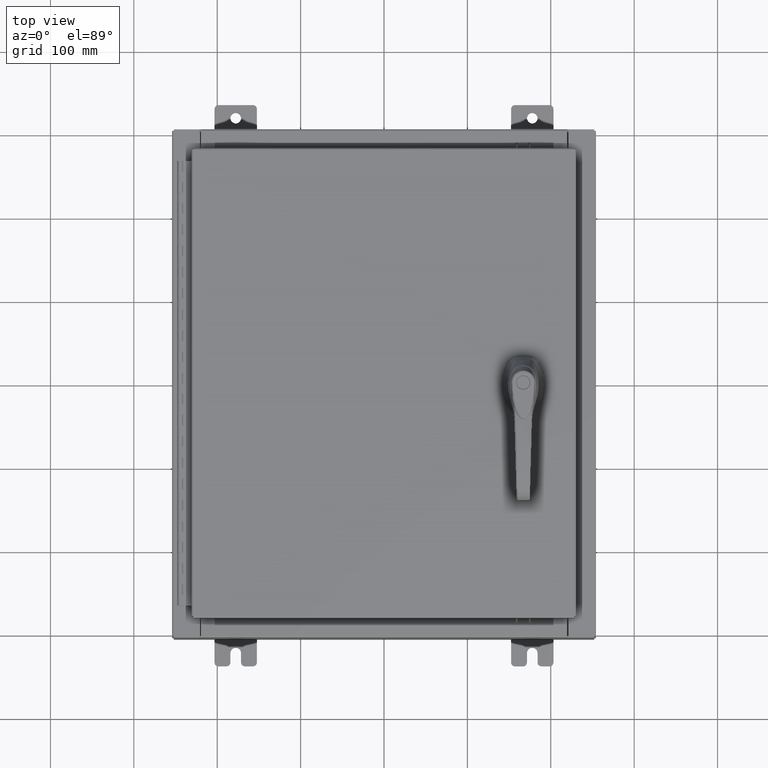
[diagram: clean part render]
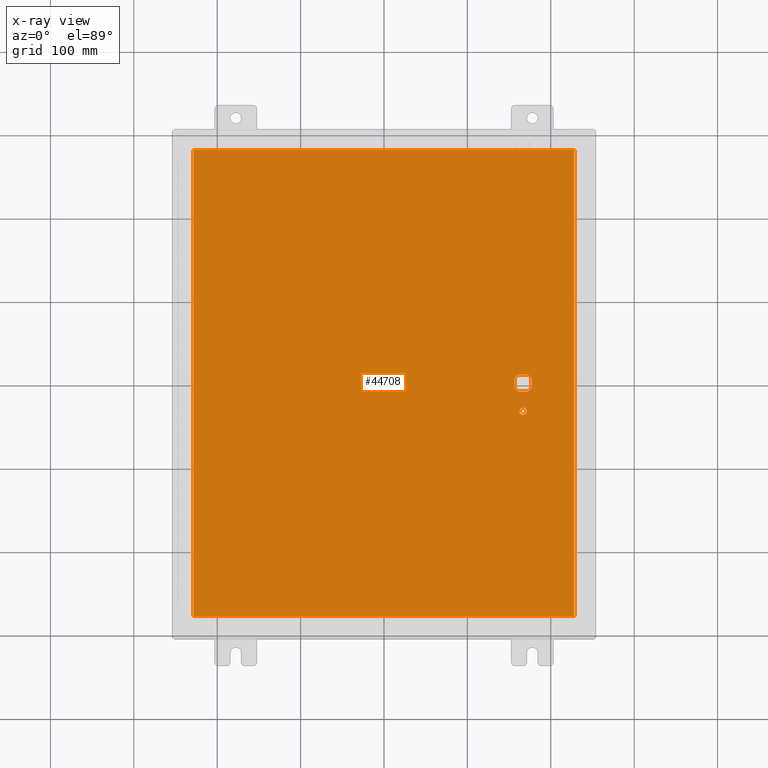
[diagram: x-ray — body ghosted, one internal face saturated and labeled with its STEP entity id]
A machine part, top view, then the same camera in x-ray: the body is ghosted and one INTERNAL B-rep face — a face not visible from any outside direction — is saturated and labeled: STEP entity #44708.
In plain terms, the highlighted planar face has unit normal (0, 0, -1).
Its self-contained STEP definition (entity closure, byte-faithful):
#4 = CARTESIAN_POINT ( 'NONE',  ( 6.577999999999998500, 0.0000000000000000000, -0.07470000000000003000 ) ) ;
#574 = CARTESIAN_POINT ( 'NONE',  ( 6.980999999999924400, 0.0000000000000000000, -0.07470000000000003000 ) ) ;
#631 = EDGE_LOOP ( 'NONE', ( #68897, #31934 ) ) ;
#922 = VECTOR ( 'NONE', #85438, 39.37007874015748100 ) ;
#3051 = ORIENTED_EDGE ( 'NONE', *, *, #20403, .T. ) ;
#4177 = ORIENTED_EDGE ( 'NONE', *, *, #94533, .F. ) ;
#5953 = DIRECTION ( 'NONE',  ( -0.0000000000000000000, -0.0000000000000000000, 1.000000000000000000 ) ) ;
#6065 = DIRECTION ( 'NONE',  ( -1.000000000000000000, 0.0000000000000000000, 0.0000000000000000000 ) ) ;
#6196 = LINE ( 'NONE', #101077, #95734 ) ;
#6298 = LINE ( 'NONE', #33214, #922 ) ;
#6360 = CIRCLE ( 'NONE', #96775, 0.4499999999999156900 ) ;
#6439 = CARTESIAN_POINT ( 'NONE',  ( -8.990299999999999500, 11.00630000000000100, -0.07470000000000019700 ) ) ;
#7350 = CIRCLE ( 'NONE', #99078, 0.4499999999999156900 ) ;
#7750 = VERTEX_POINT ( 'NONE', #94018 ) ;
#7794 = DIRECTION ( 'NONE',  ( -1.000000000000000000, 0.0000000000000000000, 0.0000000000000000000 ) ) ;
#7863 = DIRECTION ( 'NONE',  ( 0.0000000000000000000, -1.000000000000000000, 0.0000000000000000000 ) ) ;
#8247 = CARTESIAN_POINT ( 'NONE',  ( 6.778227370756308500, 0.4029999999999250300, -0.07470000000000003000 ) ) ;
#8593 = CARTESIAN_POINT ( 'NONE',  ( 6.980999999999924400, 0.2002273707563080300, -0.07470000000000003000 ) ) ;
#8699 = DIRECTION ( 'NONE',  ( -1.000000000000000000, 8.881784197001256300E-016, 0.0000000000000000000 ) ) ;
#8795 = EDGE_LOOP ( 'NONE', ( #4177, #17610, #67905, #65062 ) ) ;
#9262 = DIRECTION ( 'NONE',  ( 0.0000000000000000000, -1.000000000000000000, 0.0000000000000000000 ) ) ;
#10091 = EDGE_CURVE ( 'NONE', #52333, #69300, #75825, .T. ) ;
#10686 = LINE ( 'NONE', #574, #77026 ) ;
#10868 = CARTESIAN_POINT ( 'NONE',  ( 6.749499999999998500, -1.338000000000000100, -0.07470000000000003000 ) ) ;
#12319 = CARTESIAN_POINT ( 'NONE',  ( 8.990299999999997700, -11.00630000000000000, -0.07470000000000000300 ) ) ;
#12349 = AXIS2_PLACEMENT_3D ( 'NONE', #111568, #59686, #7794 ) ;
#13805 = ORIENTED_EDGE ( 'NONE', *, *, #53756, .T. ) ;
#17281 = EDGE_LOOP ( 'NONE', ( #81293, #104610, #77082, #13805, #26651, #50559, #3051, #20036 ) ) ;
#17333 = CARTESIAN_POINT ( 'NONE',  ( 8.990299999999997700, 11.00630000000000000, -0.07470000000000000300 ) ) ;
#17391 = EDGE_CURVE ( 'NONE', #37807, #29185, #6360, .T. ) ;
#17610 = ORIENTED_EDGE ( 'NONE', *, *, #69466, .F. ) ;
#20036 = ORIENTED_EDGE ( 'NONE', *, *, #31076, .T. ) ;
#20275 = VECTOR ( 'NONE', #59031, 39.37007874015748100 ) ;
#20403 = EDGE_CURVE ( 'NONE', #112284, #24617, #7350, .T. ) ;
#21468 = LINE ( 'NONE', #28857, #44527 ) ;
#21885 = CARTESIAN_POINT ( 'NONE',  ( 6.406499999999998500, -1.338000000000000100, -0.07470000000000003000 ) ) ;
#22045 = CARTESIAN_POINT ( 'NONE',  ( 6.577999999999998500, 0.0000000000000000000, -0.07470000000000003000 ) ) ;
#24613 = EDGE_CURVE ( 'NONE', #79793, #7750, #32529, .T. ) ;
#24617 = VERTEX_POINT ( 'NONE', #102918 ) ;
#26651 = ORIENTED_EDGE ( 'NONE', *, *, #50373, .T. ) ;
#28857 = CARTESIAN_POINT ( 'NONE',  ( 0.0000000000000000000, 0.4029999999999252000, -0.07470000000000003000 ) ) ;
#29185 = VERTEX_POINT ( 'NONE', #8247 ) ;
#29621 = AXIS2_PLACEMENT_3D ( 'NONE', #32067, #92690, #40807 ) ;
#30762 = DIRECTION ( 'NONE',  ( -1.000000000000000000, 0.0000000000000000000, 0.0000000000000000000 ) ) ;
#31076 = EDGE_CURVE ( 'NONE', #24617, #79793, #53686, .T. ) ;
#31922 = CARTESIAN_POINT ( 'NONE',  ( 6.175000000000072700, 0.2002273707563080300, -0.07470000000000003000 ) ) ;
#31934 = ORIENTED_EDGE ( 'NONE', *, *, #36033, .T. ) ;
#32067 = CARTESIAN_POINT ( 'NONE',  ( 6.577999999999998500, -1.338000000000000100, -0.07470000000000003000 ) ) ;
#32304 = DIRECTION ( 'NONE',  ( 0.0000000000000000000, 1.000000000000000000, 0.0000000000000000000 ) ) ;
#32529 = CIRCLE ( 'NONE', #12349, 0.4499999999999156900 ) ;
#33214 = CARTESIAN_POINT ( 'NONE',  ( -8.990300000000001300, -11.00630000000000100, -0.07469999999999910000 ) ) ;
#34640 = CARTESIAN_POINT ( 'NONE',  ( 6.778227370756308500, -0.4029999999999252000, -0.07470000000000003000 ) ) ;
#35828 = CARTESIAN_POINT ( 'NONE',  ( 6.175000000000072700, -0.2002273707563079800, -0.07470000000000003000 ) ) ;
#36033 = EDGE_CURVE ( 'NONE', #69300, #52333, #111280, .T. ) ;
#37139 = VERTEX_POINT ( 'NONE', #77186 ) ;
#37807 = VERTEX_POINT ( 'NONE', #8593 ) ;
#38609 = DIRECTION ( 'NONE',  ( -1.000000000000000000, 0.0000000000000000000, -0.0000000000000000000 ) ) ;
#38874 = LINE ( 'NONE', #6439, #105308 ) ;
#39622 = EDGE_CURVE ( 'NONE', #91876, #52956, #92080, .T. ) ;
#40285 = EDGE_CURVE ( 'NONE', #37807, #7750, #10686, .T. ) ;
#40807 = DIRECTION ( 'NONE',  ( -1.000000000000000000, 0.0000000000000000000, 0.0000000000000000000 ) ) ;
#41024 = CARTESIAN_POINT ( 'NONE',  ( 8.990299999999997700, -11.00630000000000000, -0.07470000000000021100 ) ) ;
#42410 = CARTESIAN_POINT ( 'NONE',  ( -8.990299999999997700, -11.00630000000000100, -0.07470000000000000300 ) ) ;
#42911 = EDGE_CURVE ( 'NONE', #52956, #110051, #38874, .T. ) ;
#44527 = VECTOR ( 'NONE', #98175, 39.37007874015748100 ) ;
#44708 = ADVANCED_FACE ( 'NONE', ( #87434, #110452, #64403 ), #90442, .T. ) ;
#49624 = DIRECTION ( 'NONE',  ( 0.0000000000000000000, -1.000000000000000000, 0.0000000000000000000 ) ) ;
#50373 = EDGE_CURVE ( 'NONE', #37139, #85688, #108652, .T. ) ;
#50559 = ORIENTED_EDGE ( 'NONE', *, *, #70304, .T. ) ;
#52333 = VERTEX_POINT ( 'NONE', #10868 ) ;
#52956 = VERTEX_POINT ( 'NONE', #97205 ) ;
#53686 = LINE ( 'NONE', #102482, #94345 ) ;
#53756 = EDGE_CURVE ( 'NONE', #29185, #37139, #21468, .T. ) ;
#57810 = CARTESIAN_POINT ( 'NONE',  ( 6.577999999999998500, 0.0000000000000000000, -0.07470000000000003000 ) ) ;
#57914 = DIRECTION ( 'NONE',  ( -0.0000000000000000000, -0.0000000000000000000, 1.000000000000000000 ) ) ;
#59031 = DIRECTION ( 'NONE',  ( -1.000000000000000000, -0.0000000000000000000, -0.0000000000000000000 ) ) ;
#59686 = DIRECTION ( 'NONE',  ( -0.0000000000000000000, -0.0000000000000000000, 1.000000000000000000 ) ) ;
#60589 = DIRECTION ( 'NONE',  ( -0.0000000000000000000, -0.0000000000000000000, 1.000000000000000000 ) ) ;
#64403 = FACE_BOUND ( 'NONE', #17281, .T. ) ;
#65062 = ORIENTED_EDGE ( 'NONE', *, *, #39622, .F. ) ;
#66528 = DIRECTION ( 'NONE',  ( -1.000000000000000000, 0.0000000000000000000, 0.0000000000000000000 ) ) ;
#67905 = ORIENTED_EDGE ( 'NONE', *, *, #42911, .F. ) ;
#68897 = ORIENTED_EDGE ( 'NONE', *, *, #10091, .T. ) ;
#69300 = VERTEX_POINT ( 'NONE', #21885 ) ;
#69466 = EDGE_CURVE ( 'NONE', #110051, #85474, #6298, .T. ) ;
#70304 = EDGE_CURVE ( 'NONE', #85688, #112284, #6196, .T. ) ;
#75643 = AXIS2_PLACEMENT_3D ( 'NONE', #81696, #107160, #38609 ) ;
#75825 = CIRCLE ( 'NONE', #96464, 0.1715000000000000700 ) ;
#76077 = CARTESIAN_POINT ( 'NONE',  ( 8.990299999999999500, 11.00630000000000000, -0.07470000000000019700 ) ) ;
#77026 = VECTOR ( 'NONE', #9262, 39.37007874015748100 ) ;
#77082 = ORIENTED_EDGE ( 'NONE', *, *, #17391, .T. ) ;
#77186 = CARTESIAN_POINT ( 'NONE',  ( 6.377772629243688500, 0.4029999999999252000, -0.07470000000000003000 ) ) ;
#79793 = VERTEX_POINT ( 'NONE', #34640 ) ;
#81293 = ORIENTED_EDGE ( 'NONE', *, *, #24613, .T. ) ;
#81696 = CARTESIAN_POINT ( 'NONE',  ( 0.0000000000000000000, 0.0000000000000000000, -0.07470000000000000300 ) ) ;
#82614 = DIRECTION ( 'NONE',  ( -0.0000000000000000000, -0.0000000000000000000, 1.000000000000000000 ) ) ;
#85438 = DIRECTION ( 'NONE',  ( 1.000000000000000000, -0.0000000000000000000, -0.0000000000000000000 ) ) ;
#85474 = VERTEX_POINT ( 'NONE', #12319 ) ;
#85688 = VERTEX_POINT ( 'NONE', #31922 ) ;
#87434 = FACE_BOUND ( 'NONE', #631, .T. ) ;
#90442 = PLANE ( 'NONE',  #75643 ) ;
#91733 = LINE ( 'NONE', #41024, #112054 ) ;
#91876 = VERTEX_POINT ( 'NONE', #17333 ) ;
#92080 = LINE ( 'NONE', #76077, #20275 ) ;
#92690 = DIRECTION ( 'NONE',  ( -0.0000000000000000000, -0.0000000000000000000, 1.000000000000000000 ) ) ;
#94018 = CARTESIAN_POINT ( 'NONE',  ( 6.980999999999924400, -0.2002273707563080300, -0.07470000000000003000 ) ) ;
#94345 = VECTOR ( 'NONE', #111131, 39.37007874015748100 ) ;
#94533 = EDGE_CURVE ( 'NONE', #85474, #91876, #91733, .T. ) ;
#95734 = VECTOR ( 'NONE', #7863, 39.37007874015748100 ) ;
#96464 = AXIS2_PLACEMENT_3D ( 'NONE', #109868, #57914, #6065 ) ;
#96775 = AXIS2_PLACEMENT_3D ( 'NONE', #22045, #82614, #30762 ) ;
#97205 = CARTESIAN_POINT ( 'NONE',  ( -8.990299999999999500, 11.00630000000000000, -0.07470000000000000300 ) ) ;
#98175 = DIRECTION ( 'NONE',  ( -1.000000000000000000, 0.0000000000000000000, 0.0000000000000000000 ) ) ;
#98775 = AXIS2_PLACEMENT_3D ( 'NONE', #57810, #5953, #66528 ) ;
#99078 = AXIS2_PLACEMENT_3D ( 'NONE', #4, #60589, #8699 ) ;
#101077 = CARTESIAN_POINT ( 'NONE',  ( 6.175000000000072700, 0.0000000000000000000, -0.07470000000000003000 ) ) ;
#102482 = CARTESIAN_POINT ( 'NONE',  ( 0.0000000000000000000, -0.4029999999999252000, -0.07470000000000003000 ) ) ;
#102918 = CARTESIAN_POINT ( 'NONE',  ( 6.377772629243688500, -0.4029999999999250300, -0.07470000000000003000 ) ) ;
#104610 = ORIENTED_EDGE ( 'NONE', *, *, #40285, .F. ) ;
#105308 = VECTOR ( 'NONE', #49624, 39.37007874015748100 ) ;
#107160 = DIRECTION ( 'NONE',  ( 0.0000000000000000000, 0.0000000000000000000, -1.000000000000000000 ) ) ;
#108652 = CIRCLE ( 'NONE', #98775, 0.4499999999999156900 ) ;
#109868 = CARTESIAN_POINT ( 'NONE',  ( 6.577999999999998500, -1.338000000000000100, -0.07470000000000003000 ) ) ;
#110051 = VERTEX_POINT ( 'NONE', #42410 ) ;
#110452 = FACE_OUTER_BOUND ( 'NONE', #8795, .T. ) ;
#111131 = DIRECTION ( 'NONE',  ( 1.000000000000000000, 0.0000000000000000000, 0.0000000000000000000 ) ) ;
#111280 = CIRCLE ( 'NONE', #29621, 0.1715000000000000700 ) ;
#111568 = CARTESIAN_POINT ( 'NONE',  ( 6.577999999999998500, 0.0000000000000000000, -0.07470000000000003000 ) ) ;
#112054 = VECTOR ( 'NONE', #32304, 39.37007874015748100 ) ;
#112284 = VERTEX_POINT ( 'NONE', #35828 ) ;